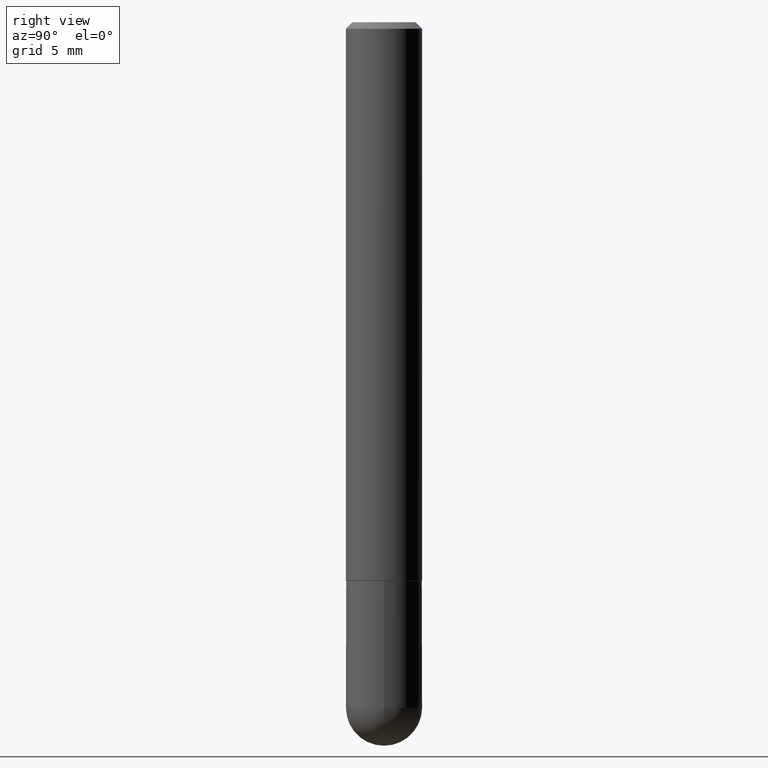
[diagram: clean part render]
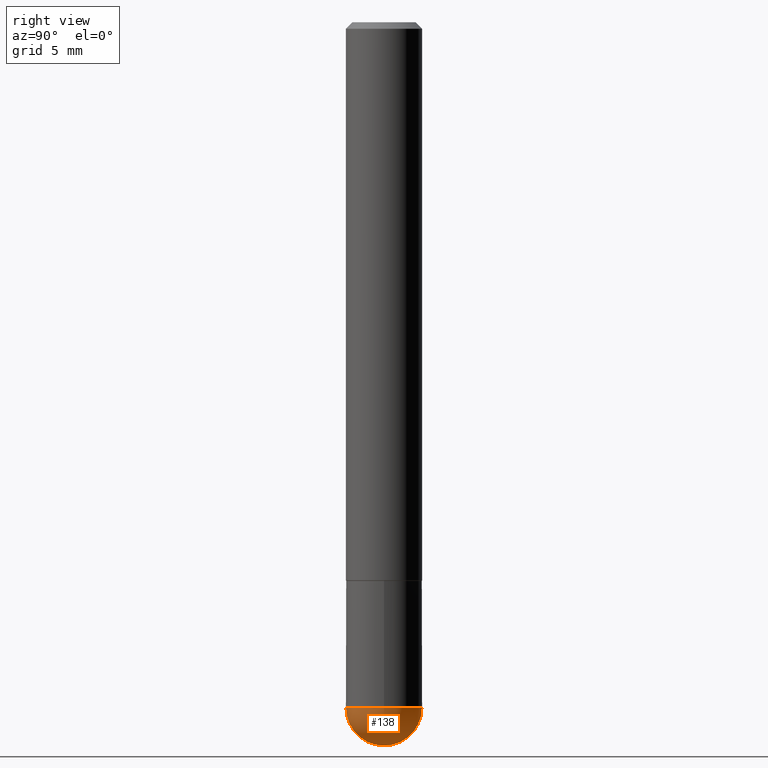
[diagram: same view with one face highlighted and labeled with its STEP entity id]
A machine part, right view. The second image highlights one B-rep face of the part: STEP entity #138.
In plain terms, the highlighted spherical surface has radius 2.9997 mm.
Its self-contained STEP definition (entity closure, byte-faithful):
#1 = DIRECTION ( 'NONE',  ( 1.000000000000000000, -6.982962677686265133E-15, 0.000000000000000000 ) ) ;
#8 = DIRECTION ( 'NONE',  ( 1.000000000000000000, -6.982962677686265133E-15, 0.000000000000000000 ) ) ;
#15 = CARTESIAN_POINT ( 'NONE',  ( 4.867946904035714063E-29, -7.897071694520576927E-15, -2.125999999999999890 ) ) ;
#21 = AXIS2_PLACEMENT_3D ( 'NONE', #83, #239, #1 ) ;
#26 = VERTEX_POINT ( 'NONE', #222 ) ;
#48 = EDGE_CURVE ( 'NONE', #383, #141, #296, .T. ) ;
#51 = DIRECTION ( 'NONE',  ( 6.982962677686265133E-15, 1.000000000000000000, 0.000000000000000000 ) ) ;
#70 = ORIENTED_EDGE ( 'NONE', *, *, #290, .F. ) ;
#74 = DIRECTION ( 'NONE',  ( -1.000000000000000000, 6.982962677686265922E-15, -4.883557194083112901E-29 ) ) ;
#83 = CARTESIAN_POINT ( 'NONE',  ( 5.199066681949599750E-29, -7.422889326380526631E-15, -2.125999999999999890 ) ) ;
#85 = AXIS2_PLACEMENT_3D ( 'NONE', #102, #334, #336 ) ;
#92 = CIRCLE ( 'NONE', #99, 0.1181000000000002603 ) ;
#98 = DIRECTION ( 'NONE',  ( -2.445468806185136597E-29, 3.491481338843145583E-15, 1.000000000000000000 ) ) ;
#99 = AXIS2_PLACEMENT_3D ( 'NONE', #393, #235, #51 ) ;
#102 = CARTESIAN_POINT ( 'NONE',  ( 4.867946904035714063E-29, -7.897071694520576927E-15, -2.125999999999999890 ) ) ;
#138 = ADVANCED_FACE ( 'NONE', ( #231 ), #331, .T. ) ;
#140 = CARTESIAN_POINT ( 'NONE',  ( 8.246878922347992427E-16, 0.1180999999999924471, -2.126000000000000334 ) ) ;
#141 = VERTEX_POINT ( 'NONE', #140 ) ;
#167 = CARTESIAN_POINT ( 'NONE',  ( -8.391509709326287947E-16, -0.1181000000000077821, -2.125999999999999446 ) ) ;
#174 = CARTESIAN_POINT ( 'NONE',  ( 0.1180999999999999966, -7.560279117064003300E-15, -2.125999999999999890 ) ) ;
#176 = AXIS2_PLACEMENT_3D ( 'NONE', #15, #74, #263 ) ;
#196 = ORIENTED_EDGE ( 'NONE', *, *, #48, .F. ) ;
#222 = CARTESIAN_POINT ( 'NONE',  ( 5.161806526983783890E-29, -8.302184101288988852E-15, -2.244100000000000428 ) ) ;
#231 = FACE_OUTER_BOUND ( 'NONE', #271, .T. ) ;
#235 = DIRECTION ( 'NONE',  ( 1.000000000000000000, -6.982962677686265922E-15, 4.883557194083112340E-29 ) ) ;
#239 = DIRECTION ( 'NONE',  ( -2.445468806185136597E-29, 3.491481338843145583E-15, 1.000000000000000000 ) ) ;
#240 = VERTEX_POINT ( 'NONE', #167 ) ;
#254 = EDGE_CURVE ( 'NONE', #26, #141, #92, .T. ) ;
#255 = ORIENTED_EDGE ( 'NONE', *, *, #254, .T. ) ;
#263 = DIRECTION ( 'NONE',  ( 6.982962677686265922E-15, 1.000000000000000000, -4.626330217890359870E-15 ) ) ;
#271 = EDGE_LOOP ( 'NONE', ( #70, #255, #196, #293 ) ) ;
#290 = EDGE_CURVE ( 'NONE', #26, #240, #315, .T. ) ;
#292 = CARTESIAN_POINT ( 'NONE',  ( 5.199066681949599750E-29, -7.422889326380526631E-15, -2.125999999999999890 ) ) ;
#293 = ORIENTED_EDGE ( 'NONE', *, *, #328, .F. ) ;
#296 = CIRCLE ( 'NONE', #343, 0.1180999999999999966 ) ;
#315 = CIRCLE ( 'NONE', #85, 0.1181000000000002603 ) ;
#328 = EDGE_CURVE ( 'NONE', #240, #383, #363, .T. ) ;
#331 = SPHERICAL_SURFACE ( 'NONE', #176, 0.1181000000000002603 ) ;
#334 = DIRECTION ( 'NONE',  ( -1.000000000000000000, 7.105427357601001070E-15, -4.926315508542082329E-29 ) ) ;
#336 = DIRECTION ( 'NONE',  ( -7.105427357601000281E-15, -1.000000000000000000, 0.000000000000000000 ) ) ;
#343 = AXIS2_PLACEMENT_3D ( 'NONE', #292, #98, #8 ) ;
#363 = CIRCLE ( 'NONE', #21, 0.1180999999999999966 ) ;
#383 = VERTEX_POINT ( 'NONE', #174 ) ;
#393 = CARTESIAN_POINT ( 'NONE',  ( 4.867946904035714063E-29, -7.897071694520576927E-15, -2.125999999999999890 ) ) ;